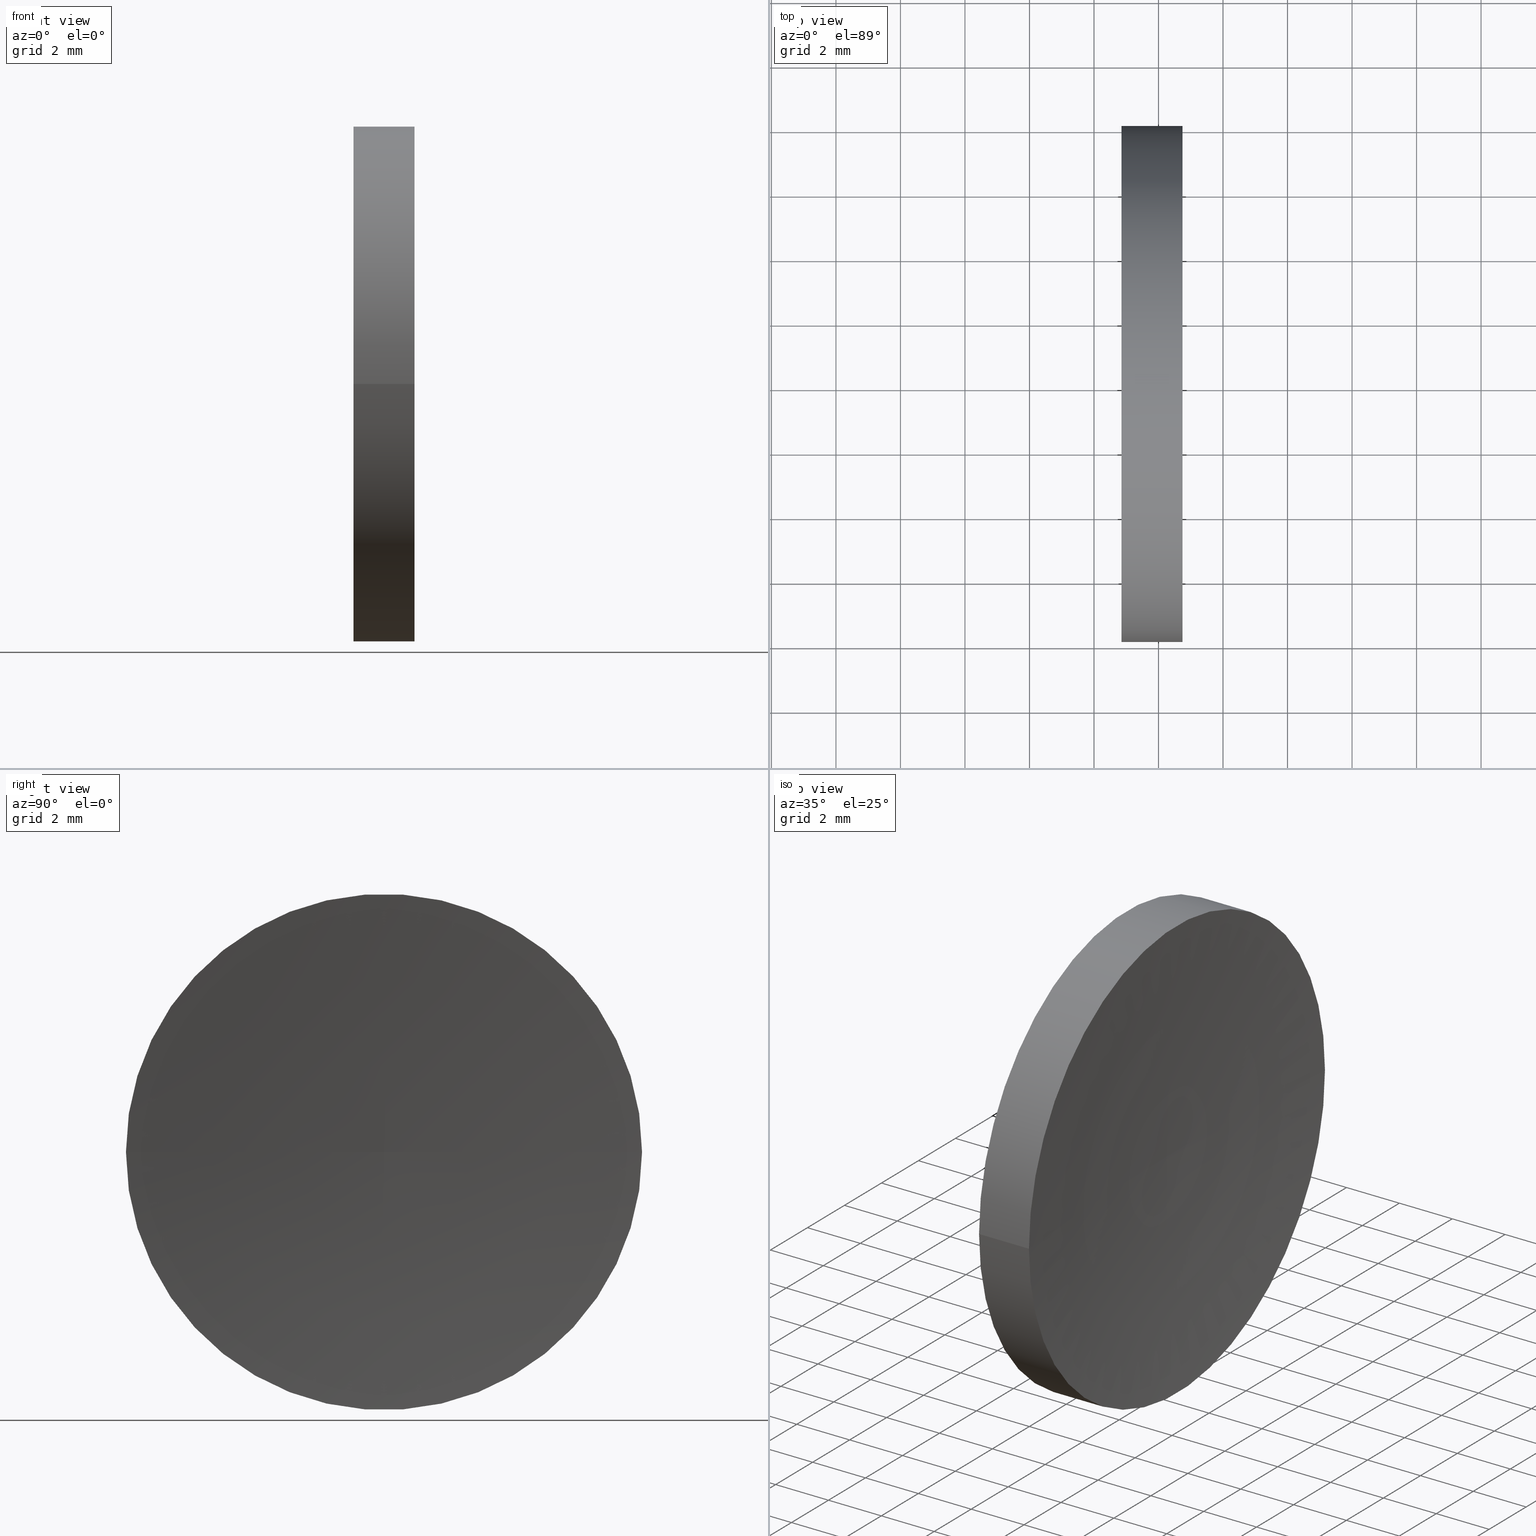
[diagram: canonical four-view strip — front | top / right | iso, engineering-drawing reading convention]
A machine part, canonical four-view strip (front | top / right | iso — engineering-drawing reading convention). The complete STEP part file that produces these views, byte-faithful:
ISO-10303-21;
HEADER;
FILE_DESCRIPTION (( 'STEP AP214' ),
    '1' );
FILE_NAME ('120147.STEP',
    '2019-06-20T02:21:05',
    ( '' ),
    ( '' ),
    'SwSTEP 2.0',
    'SolidWorks 2016',
    '' );
FILE_SCHEMA (( 'AUTOMOTIVE_DESIGN' ));
ENDSEC;

DATA;
#1 = VERTEX_POINT ( 'NONE', #159 ) ;
#2 = AXIS2_PLACEMENT_3D ( 'NONE', #19, #97, #115 ) ;
#3 = MANIFOLD_SOLID_BREP ( '��ת1', #161 ) ;
#4 = ORIENTED_EDGE ( 'NONE', *, *, #48, .T. ) ;
#5 = DIRECTION ( 'NONE',  ( -1.000000000000000000, 4.058245434298766700E-016, -0.0000000000000000000 ) ) ;
#6 =( NAMED_UNIT ( * ) PLANE_ANGLE_UNIT ( ) SI_UNIT ( $, .RADIAN. ) );
#7 = ORIENTED_EDGE ( 'NONE', *, *, #76, .T. ) ;
#8 = CARTESIAN_POINT ( 'NONE',  ( 44.85442262622448300, 26.06225218280608400, 0.0000000000000000000 ) ) ;
#9 = APPLICATION_PROTOCOL_DEFINITION ( 'draft international standard', 'automotive_design', 1998, #84 ) ;
#10 = CARTESIAN_POINT ( 'NONE',  ( 44.85442262622448300, 34.06225218280608400, 9.797174393178825700E-016 ) ) ;
#11 = ADVANCED_FACE ( 'NONE', ( #122 ), #51, .F. ) ;
#12 = PRODUCT_DEFINITION_CONTEXT ( 'detailed design', #84, 'design' ) ;
#13 = FILL_AREA_STYLE_COLOUR ( '', #58 ) ;
#14 = TOROIDAL_SURFACE ( 'NONE', #39, 9.047141961307206700E-005, 82.62000000000003300 ) ;
#15 =( GEOMETRIC_REPRESENTATION_CONTEXT ( 3 ) GLOBAL_UNCERTAINTY_ASSIGNED_CONTEXT ( ( #63 ) ) GLOBAL_UNIT_ASSIGNED_CONTEXT ( ( #125, #6, #160 ) ) REPRESENTATION_CONTEXT ( 'NONE', 'WORKASPACE' ) );
#16 = PRODUCT_DEFINITION_SHAPE ( 'NONE', 'NONE',  #47 ) ;
#17 = DIRECTION ( 'NONE',  ( 1.000000000000000000, -4.058245434298766700E-016, 0.0000000000000000000 ) ) ;
#18 = DIRECTION ( 'NONE',  ( -1.000000000000000000, 4.058245434298766700E-016, -0.0000000000000000000 ) ) ;
#19 = CARTESIAN_POINT ( 'NONE',  ( 44.85442262622448300, 26.06225218280608400, 0.0000000000000000000 ) ) ;
#20 = DIRECTION ( 'NONE',  ( -1.000000000000000000, 0.0000000000000000000, 0.0000000000000000000 ) ) ;
#21 = CARTESIAN_POINT ( 'NONE',  ( 0.0000000000000000000, 0.0000000000000000000, 0.0000000000000000000 ) ) ;
#22 =( LENGTH_UNIT ( ) NAMED_UNIT ( * ) SI_UNIT ( .MILLI., .METRE. ) );
#23 = CYLINDRICAL_SURFACE ( 'NONE', #119, 8.000000000000000000 ) ;
#24 = ORIENTED_EDGE ( 'NONE', *, *, #48, .F. ) ;
#25 = FILL_AREA_STYLE ('',( #13 ) ) ;
#26 =( GEOMETRIC_REPRESENTATION_CONTEXT ( 3 ) GLOBAL_UNCERTAINTY_ASSIGNED_CONTEXT ( ( #46 ) ) GLOBAL_UNIT_ASSIGNED_CONTEXT ( ( #22, #45, #85 ) ) REPRESENTATION_CONTEXT ( 'NONE', 'WORKASPACE' ) );
#27 = ORIENTED_EDGE ( 'NONE', *, *, #157, .F. ) ;
#28 = ORIENTED_EDGE ( 'NONE', *, *, #74, .F. ) ;
#29 = EDGE_LOOP ( 'NONE', ( #144, #37, #27, #52 ) ) ;
#30 = CARTESIAN_POINT ( 'NONE',  ( 128.9744226261749700, 26.06225218280604800, 0.0000000000000000000 ) ) ;
#31 = FACE_OUTER_BOUND ( 'NONE', #29, .T. ) ;
#32 = CARTESIAN_POINT ( 'NONE',  ( 46.74264137625596800, 34.06225218280607700, 9.797174393178817800E-016 ) ) ;
#33 = PRODUCT_CONTEXT ( 'NONE', #128, 'mechanical' ) ;
#34 = ADVANCED_FACE ( 'NONE', ( #78 ), #104, .F. ) ;
#35 = DIRECTION ( 'NONE',  ( -1.000000000000000000, 4.058245434298766700E-016, -0.0000000000000000000 ) ) ;
#36 = DIRECTION ( 'NONE',  ( 0.0000000000000000000, -1.000000000000000000, 0.0000000000000000000 ) ) ;
#37 = ORIENTED_EDGE ( 'NONE', *, *, #165, .T. ) ;
#38 = VECTOR ( 'NONE', #18, 1000.000000000000000 ) ;
#39 = AXIS2_PLACEMENT_3D ( 'NONE', #30, #164, #120 ) ;
#40 = DIRECTION ( 'NONE',  ( -4.969917281268344600E-032, -1.224646799147353200E-016, 1.000000000000000000 ) ) ;
#41 = CARTESIAN_POINT ( 'NONE',  ( 46.74264137625596800, 18.06225218280609100, 0.0000000000000000000 ) ) ;
#42 = CIRCLE ( 'NONE', #124, 8.000000000000000000 ) ;
#43 = FACE_OUTER_BOUND ( 'NONE', #123, .T. ) ;
#44 = DIRECTION ( 'NONE',  ( -1.000000000000000000, 4.058245434298766700E-016, -0.0000000000000000000 ) ) ;
#45 =( NAMED_UNIT ( * ) PLANE_ANGLE_UNIT ( ) SI_UNIT ( $, .RADIAN. ) );
#46 = UNCERTAINTY_MEASURE_WITH_UNIT (LENGTH_MEASURE( 1.000000000000000100E-005 ), #22, 'distance_accuracy_value', 'NONE');
#47 = PRODUCT_DEFINITION ( 'δ֪', '', #143, #12 ) ;
#48 = EDGE_CURVE ( 'NONE', #141, #147, #110, .T. ) ;
#49 = SURFACE_STYLE_FILL_AREA ( #25 ) ;
#50 = PRODUCT ( '120147', '120147', '', ( #33 ) ) ;
#51 = PLANE ( 'NONE',  #56 ) ;
#52 = ORIENTED_EDGE ( 'NONE', *, *, #79, .F. ) ;
#53 = CARTESIAN_POINT ( 'NONE',  ( 128.9744226261749700, 26.06225218280604800, 0.0000000000000000000 ) ) ;
#54 = EDGE_LOOP ( 'NONE', ( #92, #109, #133, #135 ) ) ;
#55 = CARTESIAN_POINT ( 'NONE',  ( 46.74264137625597500, 26.06225218280608400, 0.0000000000000000000 ) ) ;
#56 = AXIS2_PLACEMENT_3D ( 'NONE', #8, #17, #82 ) ;
#57 = DIRECTION ( 'NONE',  ( -1.000000000000000000, 4.058245434298766700E-016, -0.0000000000000000000 ) ) ;
#58 = COLOUR_RGB ( '',1.000000000000000000, 1.000000000000000000, 1.000000000000000000 ) ;
#59 = EDGE_LOOP ( 'NONE', ( #24, #158, #93 ) ) ;
#60 = VECTOR ( 'NONE', #98, 1000.000000000000000 ) ;
#61 = LINE ( 'NONE', #111, #38 ) ;
#62 = CIRCLE ( 'NONE', #2, 8.000000000000000000 ) ;
#63 = UNCERTAINTY_MEASURE_WITH_UNIT (LENGTH_MEASURE( 1.000000000000000100E-005 ), #125, 'distance_accuracy_value', 'NONE');
#64 = STYLED_ITEM ( 'NONE', ( #117 ), #105 ) ;
#65 = COLOUR_RGB ( '',1.000000000000000000, 1.000000000000000000, 1.000000000000000000 ) ;
#66 = DIRECTION ( 'NONE',  ( 0.0000000000000000000, -0.0000000000000000000, -1.000000000000000000 ) ) ;
#67 =( LENGTH_UNIT ( ) NAMED_UNIT ( * ) SI_UNIT ( .MILLI., .METRE. ) );
#68 = MECHANICAL_DESIGN_GEOMETRIC_PRESENTATION_REPRESENTATION (  '', ( #83 ), #15 ) ;
#69 = DIRECTION ( 'NONE',  ( 0.0000000000000000000, -1.000000000000000000, 0.0000000000000000000 ) ) ;
#70 = VERTEX_POINT ( 'NONE', #41 ) ;
#71 =( NAMED_UNIT ( * ) PLANE_ANGLE_UNIT ( ) SI_UNIT ( $, .RADIAN. ) );
#72 = CARTESIAN_POINT ( 'NONE',  ( 43.01195023616492100, 26.06225218280608400, 0.0000000000000000000 ) ) ;
#73 = DIRECTION ( 'NONE',  ( 0.0000000000000000000, 0.0000000000000000000, 1.000000000000000000 ) ) ;
#74 = EDGE_CURVE ( 'NONE', #70, #147, #107, .T. ) ;
#75 = AXIS2_PLACEMENT_3D ( 'NONE', #148, #66, #20 ) ;
#76 = EDGE_CURVE ( 'NONE', #145, #1, #62, .T. ) ;
#77 = CYLINDRICAL_SURFACE ( 'NONE', #91, 8.000000000000000000 ) ;
#78 = FACE_OUTER_BOUND ( 'NONE', #59, .T. ) ;
#79 = EDGE_CURVE ( 'NONE', #70, #1, #61, .T. ) ;
#80 = FILL_AREA_STYLE_COLOUR ( '', #65 ) ;
#81 = SHAPE_DEFINITION_REPRESENTATION ( #16, #105 ) ;
#82 = DIRECTION ( 'NONE',  ( 4.058245434298766700E-016, 1.000000000000000000, 0.0000000000000000000 ) ) ;
#83 = STYLED_ITEM ( 'NONE', ( #126 ), #3 ) ;
#84 = APPLICATION_CONTEXT ( 'automotive_design' ) ;
#85 =( NAMED_UNIT ( * ) SI_UNIT ( $, .STERADIAN. ) SOLID_ANGLE_UNIT ( ) );
#86 = CARTESIAN_POINT ( 'NONE',  ( 43.01195023616492100, 26.06225218280608400, 0.0000000000000000000 ) ) ;
#87 = AXIS2_PLACEMENT_3D ( 'NONE', #152, #103, #118 ) ;
#88 = DIRECTION ( 'NONE',  ( 0.0000000000000000000, -1.000000000000000000, 0.0000000000000000000 ) ) ;
#89 = CIRCLE ( 'NONE', #99, 8.000000000000000000 ) ;
#90 = MECHANICAL_DESIGN_GEOMETRIC_PRESENTATION_REPRESENTATION (  '', ( #64 ), #95 ) ;
#91 = AXIS2_PLACEMENT_3D ( 'NONE', #86, #57, #88 ) ;
#92 = ORIENTED_EDGE ( 'NONE', *, *, #165, .F. ) ;
#93 = ORIENTED_EDGE ( 'NONE', *, *, #74, .T. ) ;
#94 = FILL_AREA_STYLE ('',( #80 ) ) ;
#95 =( GEOMETRIC_REPRESENTATION_CONTEXT ( 3 ) GLOBAL_UNCERTAINTY_ASSIGNED_CONTEXT ( ( #166 ) ) GLOBAL_UNIT_ASSIGNED_CONTEXT ( ( #67, #71, #140 ) ) REPRESENTATION_CONTEXT ( 'NONE', 'WORKASPACE' ) );
#96 = SURFACE_STYLE_FILL_AREA ( #94 ) ;
#97 = DIRECTION ( 'NONE',  ( -1.000000000000000000, 4.058245434298766700E-016, -0.0000000000000000000 ) ) ;
#98 = DIRECTION ( 'NONE',  ( -1.000000000000000000, 4.058245434298766700E-016, -0.0000000000000000000 ) ) ;
#99 = AXIS2_PLACEMENT_3D ( 'NONE', #55, #100, #36 ) ;
#100 = DIRECTION ( 'NONE',  ( -1.000000000000000000, 4.058245434298766700E-016, -0.0000000000000000000 ) ) ;
#101 = DIRECTION ( 'NONE',  ( 0.0000000000000000000, -1.000000000000000000, 0.0000000000000000000 ) ) ;
#102 = ADVANCED_FACE ( 'NONE', ( #43 ), #14, .F. ) ;
#103 = DIRECTION ( 'NONE',  ( -1.000000000000000000, 4.058245434298766700E-016, -0.0000000000000000000 ) ) ;
#104 = TOROIDAL_SURFACE ( 'NONE', #162, 9.047141961307206700E-005, 82.62000000000003300 ) ;
#105 = ADVANCED_BREP_SHAPE_REPRESENTATION ( '120147', ( #3, #134 ), #26 ) ;
#106 = PRODUCT_RELATED_PRODUCT_CATEGORY ( 'part', '', ( #50 ) ) ;
#107 = CIRCLE ( 'NONE', #75, 82.62000000000003300 ) ;
#108 = PRESENTATION_LAYER_ASSIGNMENT (  '', '', ( #64 ) ) ;
#109 = ORIENTED_EDGE ( 'NONE', *, *, #150, .T. ) ;
#110 = CIRCLE ( 'NONE', #114, 82.62000000000003300 ) ;
#111 = CARTESIAN_POINT ( 'NONE',  ( 43.01195023616492100, 18.06225218280608400, 0.0000000000000000000 ) ) ;
#112 = DIRECTION ( 'NONE',  ( 0.0000000000000000000, -1.000000000000000000, -1.224646799147353000E-016 ) ) ;
#113 = CARTESIAN_POINT ( 'NONE',  ( 128.9744226261749700, 26.06234265422566300, 1.107955344434657900E-020 ) ) ;
#114 = AXIS2_PLACEMENT_3D ( 'NONE', #113, #40, #112 ) ;
#115 = DIRECTION ( 'NONE',  ( 0.0000000000000000000, -1.000000000000000000, 0.0000000000000000000 ) ) ;
#116 = SURFACE_STYLE_USAGE ( .BOTH. , #139 ) ;
#117 = PRESENTATION_STYLE_ASSIGNMENT (( #116 ) ) ;
#118 = DIRECTION ( 'NONE',  ( 0.0000000000000000000, -1.000000000000000000, 0.0000000000000000000 ) ) ;
#119 = AXIS2_PLACEMENT_3D ( 'NONE', #72, #35, #101 ) ;
#120 = DIRECTION ( 'NONE',  ( -4.058245434298766700E-016, -1.000000000000000000, 0.0000000000000000000 ) ) ;
#121 = FACE_OUTER_BOUND ( 'NONE', #54, .T. ) ;
#122 = FACE_OUTER_BOUND ( 'NONE', #136, .T. ) ;
#123 = EDGE_LOOP ( 'NONE', ( #131, #4, #28 ) ) ;
#124 = AXIS2_PLACEMENT_3D ( 'NONE', #142, #44, #69 ) ;
#125 =( LENGTH_UNIT ( ) NAMED_UNIT ( * ) SI_UNIT ( .MILLI., .METRE. ) );
#126 = PRESENTATION_STYLE_ASSIGNMENT (( #127 ) ) ;
#127 = SURFACE_STYLE_USAGE ( .BOTH. , #146 ) ;
#128 = APPLICATION_CONTEXT ( 'automotive_design' ) ;
#129 = DIRECTION ( 'NONE',  ( 1.000000000000000000, 0.0000000000000000000, 0.0000000000000000000 ) ) ;
#130 = ADVANCED_FACE ( 'NONE', ( #31 ), #23, .T. ) ;
#131 = ORIENTED_EDGE ( 'NONE', *, *, #150, .F. ) ;
#132 = ADVANCED_FACE ( 'NONE', ( #121 ), #77, .T. ) ;
#133 = ORIENTED_EDGE ( 'NONE', *, *, #79, .T. ) ;
#134 = AXIS2_PLACEMENT_3D ( 'NONE', #21, #73, #129 ) ;
#135 = ORIENTED_EDGE ( 'NONE', *, *, #76, .F. ) ;
#136 = EDGE_LOOP ( 'NONE', ( #155, #7 ) ) ;
#137 = DIRECTION ( 'NONE',  ( -4.058245434298766700E-016, -1.000000000000000000, 0.0000000000000000000 ) ) ;
#138 = PRESENTATION_LAYER_ASSIGNMENT (  '', '', ( #83 ) ) ;
#139 = SURFACE_SIDE_STYLE ('',( #49 ) ) ;
#140 =( NAMED_UNIT ( * ) SI_UNIT ( $, .STERADIAN. ) SOLID_ANGLE_UNIT ( ) );
#141 = VERTEX_POINT ( 'NONE', #32 ) ;
#142 = CARTESIAN_POINT ( 'NONE',  ( 46.74264137625597500, 26.06225218280608400, 0.0000000000000000000 ) ) ;
#143 = PRODUCT_DEFINITION_FORMATION_WITH_SPECIFIED_SOURCE ( '�κ�', '', #50, .NOT_KNOWN. ) ;
#144 = ORIENTED_EDGE ( 'NONE', *, *, #156, .T. ) ;
#145 = VERTEX_POINT ( 'NONE', #10 ) ;
#146 = SURFACE_SIDE_STYLE ('',( #96 ) ) ;
#147 = VERTEX_POINT ( 'NONE', #151 ) ;
#148 = CARTESIAN_POINT ( 'NONE',  ( 128.9744226261749700, 26.06216171138643700, 0.0000000000000000000 ) ) ;
#149 = CARTESIAN_POINT ( 'NONE',  ( 43.01195023616492100, 34.06225218280608400, 9.797174393178825700E-016 ) ) ;
#150 = EDGE_CURVE ( 'NONE', #141, #70, #89, .T. ) ;
#151 = CARTESIAN_POINT ( 'NONE',  ( 46.35442262622449800, 26.06225218280608400, 0.0000000000000000000 ) ) ;
#152 = CARTESIAN_POINT ( 'NONE',  ( 44.85442262622448300, 26.06225218280608400, 0.0000000000000000000 ) ) ;
#153 = LINE ( 'NONE', #149, #60 ) ;
#154 = CIRCLE ( 'NONE', #87, 8.000000000000000000 ) ;
#155 = ORIENTED_EDGE ( 'NONE', *, *, #157, .T. ) ;
#156 = EDGE_CURVE ( 'NONE', #70, #141, #42, .T. ) ;
#157 = EDGE_CURVE ( 'NONE', #1, #145, #154, .T. ) ;
#158 = ORIENTED_EDGE ( 'NONE', *, *, #156, .F. ) ;
#159 = CARTESIAN_POINT ( 'NONE',  ( 44.85442262622448300, 18.06225218280608400, 0.0000000000000000000 ) ) ;
#160 =( NAMED_UNIT ( * ) SI_UNIT ( $, .STERADIAN. ) SOLID_ANGLE_UNIT ( ) );
#161 = CLOSED_SHELL ( 'NONE', ( #130, #102, #34, #132, #11 ) ) ;
#162 = AXIS2_PLACEMENT_3D ( 'NONE', #53, #5, #137 ) ;
#163 = APPLICATION_PROTOCOL_DEFINITION ( 'draft international standard', 'automotive_design', 1998, #128 ) ;
#164 = DIRECTION ( 'NONE',  ( -1.000000000000000000, 4.058245434298766700E-016, -0.0000000000000000000 ) ) ;
#165 = EDGE_CURVE ( 'NONE', #141, #145, #153, .T. ) ;
#166 = UNCERTAINTY_MEASURE_WITH_UNIT (LENGTH_MEASURE( 1.000000000000000100E-005 ), #67, 'distance_accuracy_value', 'NONE');
ENDSEC;
END-ISO-10303-21;
